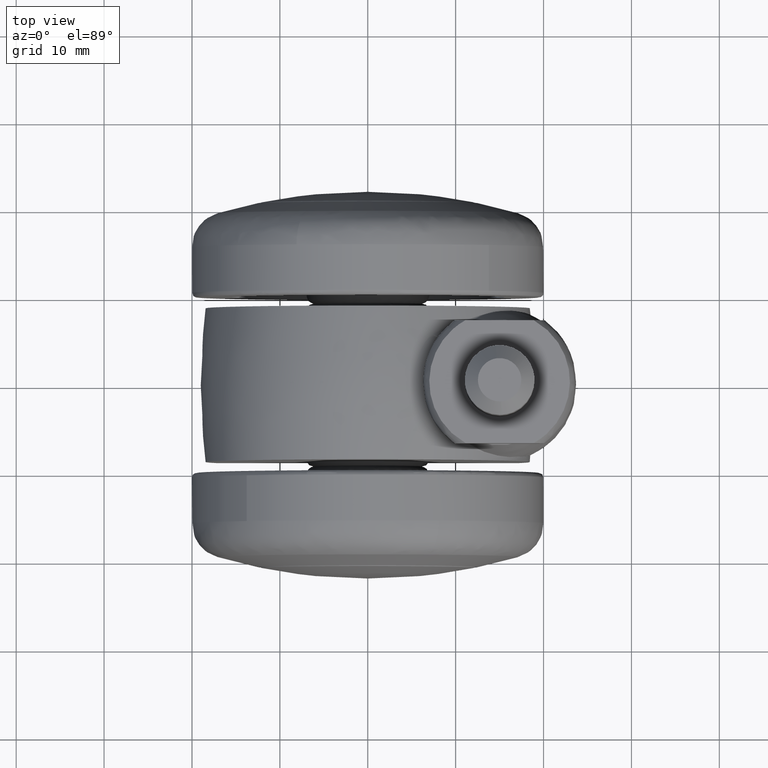
[diagram: clean part render]
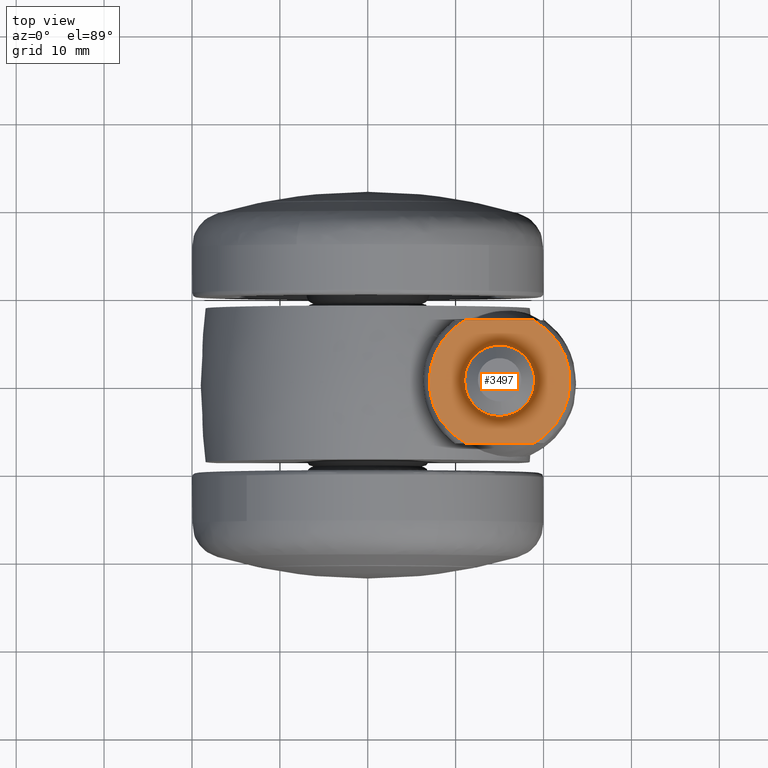
[diagram: same view with one face highlighted and labeled with its STEP entity id]
A machine part, top view. The second image highlights one B-rep face of the part: STEP entity #3497.
In plain terms, the highlighted face is a freeform B-spline surface patch.
Its self-contained STEP definition (entity closure, byte-faithful):
#1741=CARTESIAN_POINT('',(14.965364380495551,-3.968848872640633,23.499999990538900));
#1742=VERTEX_POINT('',#1741);
#1748=CARTESIAN_POINT('',(18.968999999999909,8.755935E-016,23.499999990538900));
#1749=VERTEX_POINT('',#1748);
#1750=CARTESIAN_POINT('',(14.965364380495554,-3.968848872640632,23.499999990538896));
#1751=CARTESIAN_POINT('',(14.982681860481229,-3.968999999999909,23.499999990538900));
#1752=CARTESIAN_POINT('',(15.0,-3.968999999999909,23.499999990538900));
#1753=CARTESIAN_POINT('',(18.968999999999912,-3.968999999999909,23.499999990538903));
#1754=CARTESIAN_POINT('',(18.968999999999909,8.755935E-016,23.499999990538900));
#1762=(BOUNDED_CURVE()B_SPLINE_CURVE(2,(#1750,#1751,#1752,#1753,#1754),.UNSPECIFIED.,.F.,.U.)B_SPLINE_CURVE_WITH_KNOTS((3,2,3),(0.248460105655125,0.250000000000000,0.500000000000000),.UNSPECIFIED.)CURVE()GEOMETRIC_REPRESENTATION_ITEM()RATIONAL_B_SPLINE_CURVE((0.996414028077522,0.998195901554787,1.0,0.707106781186548,1.0))REPRESENTATION_ITEM(''));
#1763=EDGE_CURVE('',#1742,#1749,#1762,.T.);
#1765=CARTESIAN_POINT('',(15.726817683409161,3.901883782877577,23.499999990538900));
#1766=VERTEX_POINT('',#1765);
#1767=CARTESIAN_POINT('',(18.968999999999909,8.755935E-016,23.499999990538900));
#1768=CARTESIAN_POINT('',(18.968999999999909,3.297951023255924,23.499999990538900));
#1769=CARTESIAN_POINT('',(15.726817683409164,3.901883782877577,23.499999990538907));
#1777=(BOUNDED_CURVE()B_SPLINE_CURVE(2,(#1767,#1768,#1769),.UNSPECIFIED.,.F.,.U.)B_SPLINE_CURVE_WITH_KNOTS((3,3),(0.500000000000000,0.718554736282199),.UNSPECIFIED.)CURVE()GEOMETRIC_REPRESENTATION_ITEM()RATIONAL_B_SPLINE_CURVE((1.0,0.743947199213526,0.935586817228703))REPRESENTATION_ITEM(''));
#1778=EDGE_CURVE('',#1749,#1766,#1777,.T.);
#1828=CARTESIAN_POINT('',(11.031000000000089,8.755935E-016,23.499999990538900));
#1829=VERTEX_POINT('',#1828);
#1830=CARTESIAN_POINT('',(15.726817683409159,3.901883782877577,23.499999990538910));
#1831=CARTESIAN_POINT('',(15.366507683920446,3.968999999999912,23.499999990538896));
#1832=CARTESIAN_POINT('',(15.0,3.968999999999911,23.499999990538900));
#1833=CARTESIAN_POINT('',(11.031000000000089,3.968999999999912,23.499999990538903));
#1834=CARTESIAN_POINT('',(11.031000000000089,8.755935E-016,23.499999990538900));
#1842=(BOUNDED_CURVE()B_SPLINE_CURVE(2,(#1830,#1831,#1832,#1833,#1834),.UNSPECIFIED.,.F.,.U.)B_SPLINE_CURVE_WITH_KNOTS((3,2,3),(0.718554736282200,0.750000000000000,1.0),.UNSPECIFIED.)CURVE()GEOMETRIC_REPRESENTATION_ITEM()RATIONAL_B_SPLINE_CURVE((0.935586817228703,0.963159581973022,1.0,0.707106781186548,1.0))REPRESENTATION_ITEM(''));
#1843=EDGE_CURVE('',#1766,#1829,#1842,.T.);
#1845=CARTESIAN_POINT('',(11.031000000000089,8.755935E-016,23.499999990538900));
#1846=CARTESIAN_POINT('',(11.031000000000088,-3.934514194630495,23.499999990538900));
#1847=CARTESIAN_POINT('',(14.965364380495556,-3.968848872640633,23.499999990538896));
#1855=(BOUNDED_CURVE()B_SPLINE_CURVE(2,(#1845,#1846,#1847),.UNSPECIFIED.,.F.,.U.)B_SPLINE_CURVE_WITH_KNOTS((3,3),(0.0,0.248460105655125),.UNSPECIFIED.)CURVE()GEOMETRIC_REPRESENTATION_ITEM()RATIONAL_B_SPLINE_CURVE((1.0,0.708910879631760,0.996414028077522))REPRESENTATION_ITEM(''));
#1856=EDGE_CURVE('',#1829,#1742,#1855,.T.);
#2217=CARTESIAN_POINT('',(11.127016367024860,7.0,23.500000000000000));
#2218=VERTEX_POINT('',#2217);
#2268=CARTESIAN_POINT('',(18.872983639207352,7.000000011264020,23.499999981078052));
#2269=VERTEX_POINT('',#2268);
#2270=CARTESIAN_POINT('',(11.127016367024860,7.0,23.500000000000000));
#2271=CARTESIAN_POINT('',(18.872983639207352,7.000000011264020,23.499999981078052));
#2272=QUASI_UNIFORM_CURVE('',1,(#2270,#2271),.UNSPECIFIED.,.F.,.U.);
#2273=EDGE_CURVE('',#2218,#2269,#2272,.T.);
#2336=CARTESIAN_POINT('',(18.872983632975149,-7.0,23.500000000000000));
#2337=VERTEX_POINT('',#2336);
#2375=CARTESIAN_POINT('',(11.127016367024860,-7.0,23.500000000000000));
#2376=VERTEX_POINT('',#2375);
#2377=CARTESIAN_POINT('',(11.127016367024860,-7.0,23.500000000000000));
#2378=CARTESIAN_POINT('',(18.872983632975149,-7.0,23.500000000000000));
#2379=QUASI_UNIFORM_CURVE('',1,(#2377,#2378),.UNSPECIFIED.,.F.,.U.);
#2380=EDGE_CURVE('',#2376,#2337,#2379,.T.);
#3388=CARTESIAN_POINT('',(18.872983639207352,7.000000011264016,23.499999981078052));
#3389=CARTESIAN_POINT('',(23.000000151703997,4.716590381847198,23.499999981078052));
#3390=CARTESIAN_POINT('',(23.000000151704000,0.0,23.499999981078052));
#3391=CARTESIAN_POINT('',(23.000000151703997,-4.716590381847199,23.499999981078052));
#3392=CARTESIAN_POINT('',(18.872983632975149,-7.0,23.500000000000000));
#3400=(BOUNDED_CURVE()B_SPLINE_CURVE(2,(#3388,#3389,#3390,#3391,#3392),.UNSPECIFIED.,.F.,.U.)B_SPLINE_CURVE_WITH_KNOTS((3,2,3),(0.0,0.500000000000000,1.0),.UNSPECIFIED.)CURVE()GEOMETRIC_REPRESENTATION_ITEM()RATIONAL_B_SPLINE_CURVE((1.0,0.861429900142924,1.0,0.861429900142924,1.0))REPRESENTATION_ITEM(''));
#3401=EDGE_CURVE('',#2269,#2337,#3400,.T.);
#3462=CARTESIAN_POINT('',(11.127016367024860,-7.0,23.500000000000000));
#3463=CARTESIAN_POINT('',(6.999999848296000,-4.716590381847207,23.499999981078044));
#3464=CARTESIAN_POINT('',(6.999999848296000,0.0,23.499999981078052));
#3465=CARTESIAN_POINT('',(6.999999848296000,4.716590381847205,23.499999981078044));
#3466=CARTESIAN_POINT('',(11.127016367024860,7.0,23.500000000000000));
#3474=(BOUNDED_CURVE()B_SPLINE_CURVE(2,(#3462,#3463,#3464,#3465,#3466),.UNSPECIFIED.,.F.,.U.)B_SPLINE_CURVE_WITH_KNOTS((3,2,3),(0.0,0.500000000000000,1.0),.UNSPECIFIED.)CURVE()GEOMETRIC_REPRESENTATION_ITEM()RATIONAL_B_SPLINE_CURVE((1.0,0.861429900142923,1.0,0.861429900142923,1.0))REPRESENTATION_ITEM(''));
#3475=EDGE_CURVE('',#2376,#2218,#3474,.T.);
#3480=CARTESIAN_POINT('',(23.799199985651551,-7.699299973427921,23.499999990538900));
#3481=CARTESIAN_POINT('',(6.200799442143847,-7.699299973427921,23.499999990538900));
#3482=CARTESIAN_POINT('',(23.799199985651551,7.699300360201203,23.499999990538900));
#3483=CARTESIAN_POINT('',(6.200799442143847,7.699300360201203,23.499999990538900));
#3484=B_SPLINE_SURFACE_WITH_KNOTS('',1,1,((#3480,#3482),(#3481,#3483)),.UNSPECIFIED.,.F.,.F.,.U.,(2,2),(2,2),(0.0,17.598400543507701),(0.0,15.398600333629121),.UNSPECIFIED.);
#3485=ORIENTED_EDGE('',*,*,#2273,.F.);
#3486=ORIENTED_EDGE('',*,*,#3475,.F.);
#3487=ORIENTED_EDGE('',*,*,#2380,.T.);
#3488=ORIENTED_EDGE('',*,*,#3401,.F.);
#3489=EDGE_LOOP('',(#3485,#3486,#3487,#3488));
#3490=FACE_OUTER_BOUND('',#3489,.T.);
#3491=ORIENTED_EDGE('',*,*,#1856,.F.);
#3492=ORIENTED_EDGE('',*,*,#1843,.F.);
#3493=ORIENTED_EDGE('',*,*,#1778,.F.);
#3494=ORIENTED_EDGE('',*,*,#1763,.F.);
#3495=EDGE_LOOP('',(#3491,#3492,#3493,#3494));
#3496=FACE_BOUND('',#3495,.T.);
#3497=ADVANCED_FACE('',(#3490,#3496),#3484,.F.);